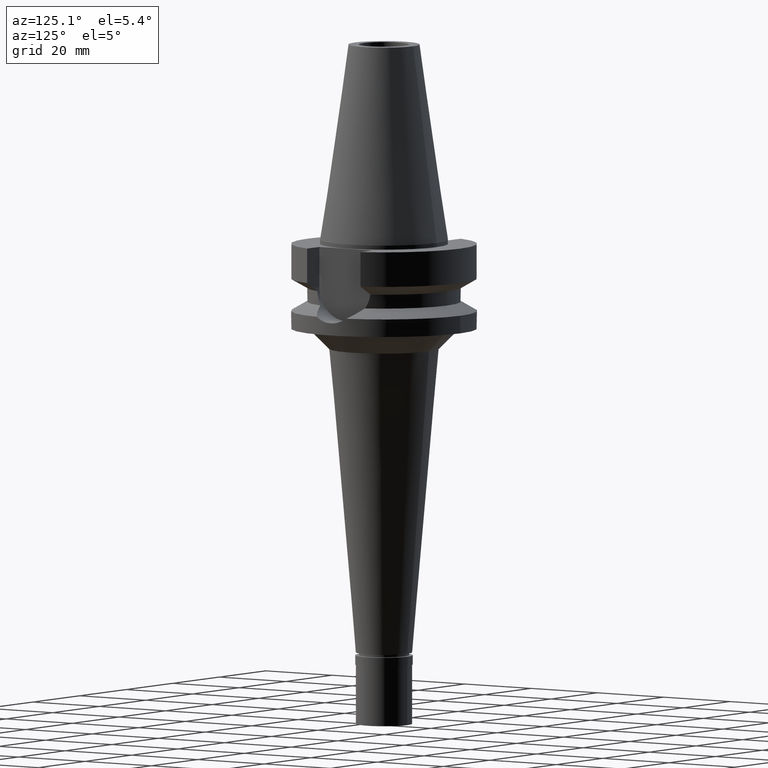
[diagram: clean part render]
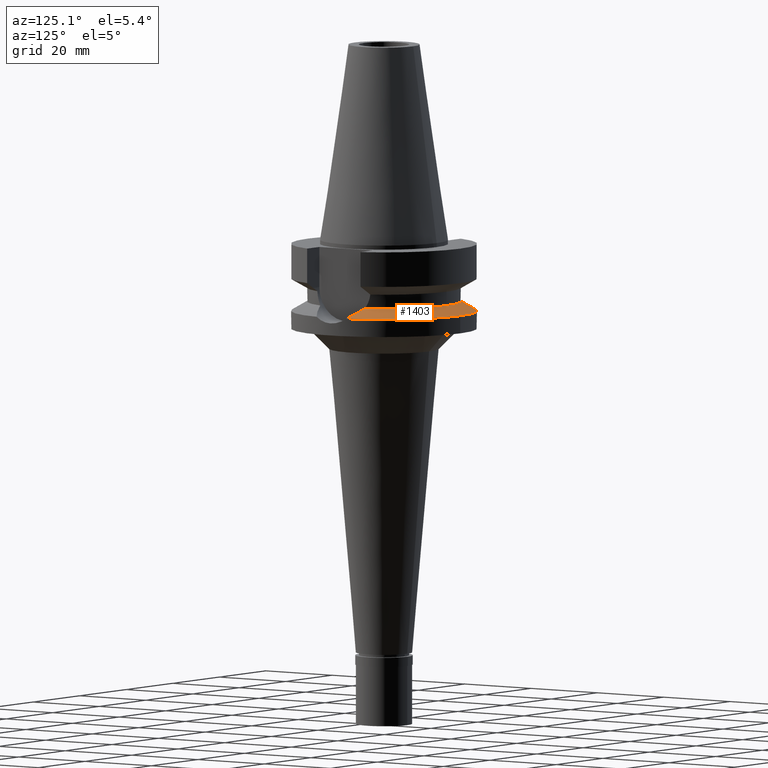
[diagram: same view with one face highlighted and labeled with its STEP entity id]
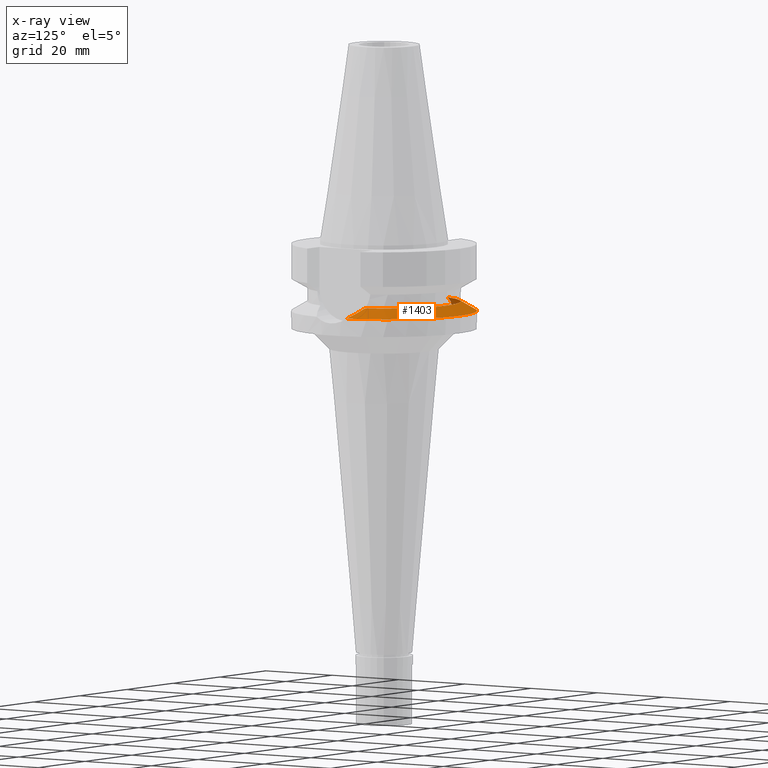
[diagram: x-ray of the same camera — body ghosted, the highlighted face saturated]
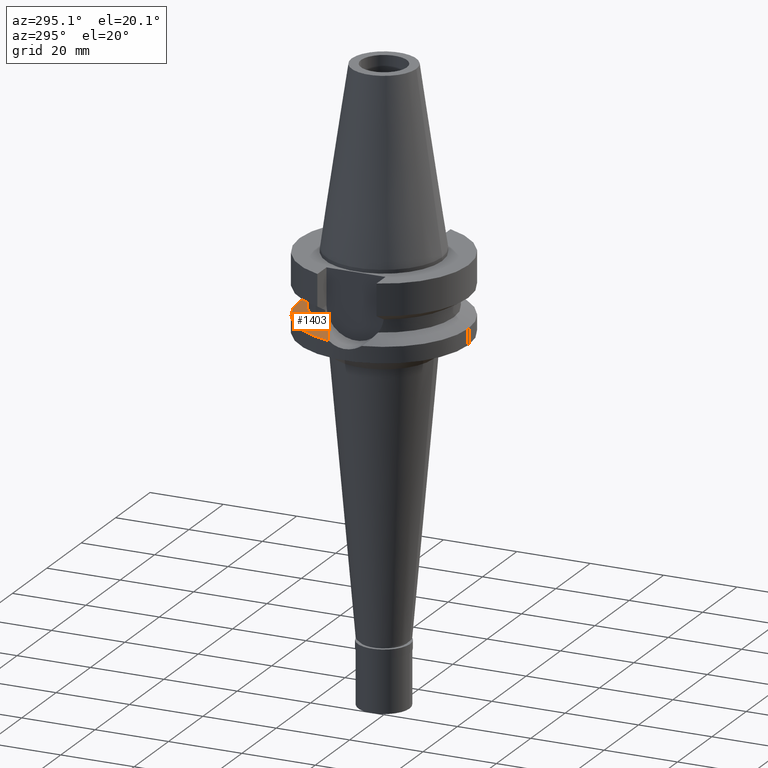
[diagram: same view with one face highlighted and labeled with its STEP entity id]
A machine part, auxiliary view. The second image highlights one B-rep face of the part: STEP entity #1403.
The next image is the same camera in x-ray: the body ghosted, the highlighted face saturated — about 2% of this face is hidden behind the body in this view.
A second angle (auxiliary view) of the same face is appended — the face is thin or edge-on in the first view.
In plain terms, the highlighted conical surface has half-angle 60 deg.
Its self-contained STEP definition (entity closure, byte-faithful):
#71 = EDGE_CURVE ( 'NONE', #1900, #2822, #2221, .T. ) ;
#125 = CARTESIAN_POINT ( 'NONE',  ( -18.24675465211006653, 6.607563344652247039, -15.55648350950441916 ) ) ;
#203 = CARTESIAN_POINT ( 'NONE',  ( -20.21357565396903411, 5.831504137523167763, -16.49958795479358287 ) ) ;
#208 = CARTESIAN_POINT ( 'NONE',  ( 0.0000000000000000000, 1.022848384030000006E-14, -17.63279163029000074 ) ) ;
#269 = CARTESIAN_POINT ( 'NONE',  ( -19.88835019653564373, 5.976683046476096273, -16.34315645407913564 ) ) ;
#319 = CIRCLE ( 'NONE', #2280, 23.00000000000000000 ) ;
#339 = DIRECTION ( 'NONE',  ( 0.0000000000000000000, 0.0000000000000000000, -1.000000000000000000 ) ) ;
#439 = EDGE_LOOP ( 'NONE', ( #842, #2426, #2054, #944, #1263 ) ) ;
#547 = B_SPLINE_CURVE_WITH_KNOTS ( 'NONE', 3,
 ( #1264, #125, #723, #2061, #1799, #269, #1907, #203, #2041, #2499, #2940, #1817, #1108, #2929 ),
 .UNSPECIFIED., .F., .F.,
 ( 4, 2, 2, 1, 1, 2, 2, 4 ),
 ( 0.0000000000000000000, 0.2499999999999960587, 0.3749999999999943934, 0.4374999999999925060, 0.4687499999999918954, 0.4843749999999911737, 0.4999999999999905076, 1.000000000000000000 ),
 .UNSPECIFIED. ) ;
#723 = CARTESIAN_POINT ( 'NONE',  ( -18.71032841680850467, 6.447031091511014722, -15.77810860067565102 ) ) ;
#762 = CARTESIAN_POINT ( 'NONE',  ( 19.77328210355043225, 6.137069160724274219, -16.28355951939457213 ) ) ;
#799 = CONICAL_SURFACE ( 'NONE', #2097, 21.00000000000000000, 1.047197551196400456 ) ;
#821 = CARTESIAN_POINT ( 'NONE',  ( 0.0000000000000000000, 1.022848384030000006E-14, -16.47809109191000232 ) ) ;
#842 = ORIENTED_EDGE ( 'NONE', *, *, #71, .F. ) ;
#940 = CARTESIAN_POINT ( 'NONE',  ( 0.0000000000000000000, 1.022848384030000006E-14, -15.32339055352999857 ) ) ;
#944 = ORIENTED_EDGE ( 'NONE', *, *, #2272, .F. ) ;
#948 = EDGE_CURVE ( 'NONE', #2822, #2772, #547, .T. ) ;
#962 = CARTESIAN_POINT ( 'NONE',  ( -17.75736593456000278, 6.758398853743999624, -15.32339055352999857 ) ) ;
#991 = DIRECTION ( 'NONE',  ( 0.0000000000000000000, 0.0000000000000000000, -1.000000000000000000 ) ) ;
#994 = AXIS2_PLACEMENT_3D ( 'NONE', #2800, #991, #2386 ) ;
#1027 = DIRECTION ( 'NONE',  ( 0.0000000000000000000, -1.000000000000000000, 0.0000000000000000000 ) ) ;
#1032 = EDGE_CURVE ( 'NONE', #2529, #2208, #319, .T. ) ;
#1108 = CARTESIAN_POINT ( 'NONE',  ( -21.93954449650229321, 4.934518952154441251, -17.33296431443707419 ) ) ;
#1249 = CARTESIAN_POINT ( 'NONE',  ( 17.75736593456000278, 6.758398853743999624, -15.32339055352999857 ) ) ;
#1263 = ORIENTED_EDGE ( 'NONE', *, *, #948, .F. ) ;
#1264 = CARTESIAN_POINT ( 'NONE',  ( -17.75736593456000278, 6.758398853743999624, -15.32339055352999857 ) ) ;
#1403 = ADVANCED_FACE ( 'NONE', ( #1993 ), #799, .T. ) ;
#1433 = CARTESIAN_POINT ( 'NONE',  ( 22.55786346208000026, 4.488072640470000430, -17.63279163029000074 ) ) ;
#1442 = DIRECTION ( 'NONE',  ( 0.0000000000000000000, 0.0000000000000000000, 1.000000000000000000 ) ) ;
#1452 = DIRECTION ( 'NONE',  ( 0.0000000000000000000, 1.000000000000000000, 0.0000000000000000000 ) ) ;
#1634 = CARTESIAN_POINT ( 'NONE',  ( 22.55786346208000026, 4.488072640470000430, -17.63279163029000074 ) ) ;
#1713 = CARTESIAN_POINT ( 'NONE',  ( 17.75736593456000278, 6.758398853743999624, -15.32339055352999857 ) ) ;
#1799 = CARTESIAN_POINT ( 'NONE',  ( -19.57939230228924643, 6.108430667046987672, -16.19471942917064666 ) ) ;
#1817 = CARTESIAN_POINT ( 'NONE',  ( -21.21489627768927733, 5.360287194204368610, -16.98188266554679871 ) ) ;
#1846 = EDGE_CURVE ( 'NONE', #2208, #1900, #2604, .T. ) ;
#1900 = VERTEX_POINT ( 'NONE', #1249 ) ;
#1907 = CARTESIAN_POINT ( 'NONE',  ( -20.04040899182901114, 5.910164258811736460, -16.41625871022441174 ) ) ;
#1993 = FACE_OUTER_BOUND ( 'NONE', #439, .T. ) ;
#2038 = AXIS2_PLACEMENT_3D ( 'NONE', #940, #1442, #1452 ) ;
#2041 = CARTESIAN_POINT ( 'NONE',  ( -20.28688238080715678, 5.797574417129784052, -16.53488107637495119 ) ) ;
#2054 = ORIENTED_EDGE ( 'NONE', *, *, #1032, .F. ) ;
#2061 = CARTESIAN_POINT ( 'NONE',  ( -19.36696663457874124, 6.194542851792355087, -16.09278373023943232 ) ) ;
#2079 = CARTESIAN_POINT ( 'NONE',  ( -22.55786346208000026, 4.488072640470000430, -17.63279163029000074 ) ) ;
#2097 = AXIS2_PLACEMENT_3D ( 'NONE', #821, #339, #1027 ) ;
#2121 = CARTESIAN_POINT ( 'NONE',  ( 21.37344794605709808, 5.343258989363347311, -17.05846002348366852 ) ) ;
#2208 = VERTEX_POINT ( 'NONE', #1634 ) ;
#2221 = CIRCLE ( 'NONE', #2038, 19.00000000000000000 ) ;
#2272 = EDGE_CURVE ( 'NONE', #2772, #2529, #2294, .T. ) ;
#2280 = AXIS2_PLACEMENT_3D ( 'NONE', #208, #2934, #2754 ) ;
#2294 = CIRCLE ( 'NONE', #994, 23.00000000000001066 ) ;
#2386 = DIRECTION ( 'NONE',  ( -0.9807766722643714852, 0.1951335930638943839, 0.0000000000000000000 ) ) ;
#2426 = ORIENTED_EDGE ( 'NONE', *, *, #1846, .F. ) ;
#2499 = CARTESIAN_POINT ( 'NONE',  ( -20.33555185271340804, 5.774906969654389322, -16.55831661474688232 ) ) ;
#2529 = VERTEX_POINT ( 'NONE', #2876 ) ;
#2604 = B_SPLINE_CURVE_WITH_KNOTS ( 'NONE', 3,
 ( #1433, #2121, #762, #1713 ),
 .UNSPECIFIED., .F., .F.,
 ( 4, 4 ),
 ( 0.0000000000000000000, 1.000000000000000000 ),
 .UNSPECIFIED. ) ;
#2754 = DIRECTION ( 'NONE',  ( 0.0000000000000000000, 1.000000000000000000, 0.0000000000000000000 ) ) ;
#2772 = VERTEX_POINT ( 'NONE', #2079 ) ;
#2800 = CARTESIAN_POINT ( 'NONE',  ( 0.0000000000000000000, 1.022848384030000006E-14, -17.63279163029000074 ) ) ;
#2822 = VERTEX_POINT ( 'NONE', #962 ) ;
#2876 = CARTESIAN_POINT ( 'NONE',  ( 0.0000000000000000000, 23.00000000000000000, -17.63279163029000074 ) ) ;
#2929 = CARTESIAN_POINT ( 'NONE',  ( -22.55786346208000026, 4.488072640470000430, -17.63279163029000074 ) ) ;
#2934 = DIRECTION ( 'NONE',  ( 0.0000000000000000000, 0.0000000000000000000, -1.000000000000000000 ) ) ;
#2940 = CARTESIAN_POINT ( 'NONE',  ( -20.35795075963942224, 5.764414793316761099, -16.56910388972269388 ) ) ;